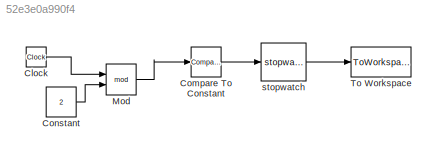
MODEL slx_52e3e0a990f4
KIND model
CONFIG AbsTol = auto
CONFIG EnableMultiTasking = off
CONFIG FixedStep = 0.001
CONFIG MaxStep = auto
CONFIG MinStep = auto
CONFIG RelTol = 1e-3
CONFIG SampleTimeConstraint = Unconstrained
CONFIG Solver = FixedStepDiscrete
CONFIG SolverName = FixedStepDiscrete
CONFIG StartTime = 0.0
CONFIG StopTime = 10.0
BLOCK [Clock] Clock
BLOCK [Reference] Compare To Constant  REF=simulink/Logic and Bit
Operations/Compare
To Constant
  Ports = [1, 1]
  SourceBlock = simulink/Logic and Bit\nOperations/Compare\nTo Constant
  SourceProductBaseCode = SL
  SourceProductName = Simulink
  SourceType = Compare To Constant
BLOCK [Constant] Constant
  Value = 2
BLOCK [Math] Mod
  Operator = mod
  Ports = [2, 1]
BLOCK [ToWorkspace] To Workspace
  FixptAsFi = on
  MaxDataPoints = inf
  Ports = [1]
  SampleTime = -1
  Save2DSignal = 3-D array (concatenate along third dimension)
  SaveFormat = Timeseries
  VariableName = simout
BLOCK [Reference] stopwatch  REF=stopwatch_ul/stopwatch  (lib defined in slx_5231e8830116, slx_6b86a6863970)
  Ports = [1, 1]
  SourceBlock = stopwatch_ul/stopwatch
  SourceType = SubSystem
LINE Clock:1 -> Mod:1
LINE Compare To Constant:1 -> stopwatch:1
LINE Constant:1 -> Mod:2
LINE Mod:1 -> Compare To Constant:1
LINE stopwatch:1 -> To Workspace:1
